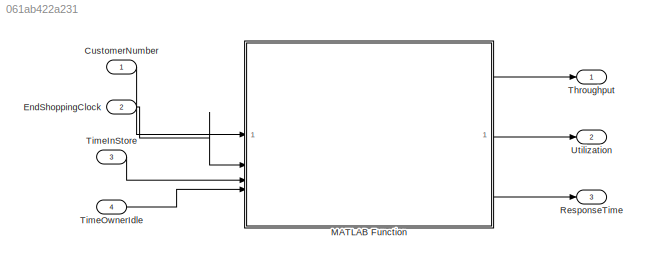
MODEL slx_061ab422a231
KIND model
CONFIG AbsTol = auto
CONFIG EnableMultiTasking = off
CONFIG FixedStep = auto
CONFIG MaxStep = auto
CONFIG MinStep = auto
CONFIG RelTol = 1e-3
CONFIG SampleTimeConstraint = Unconstrained
CONFIG SolverName = VariableStepAuto
CONFIG StartTime = 0.0
CONFIG StopTime = 10.0
BLOCK [Inport] CustomerNumber
BLOCK [Inport] EndShoppingClock
  Port = 2
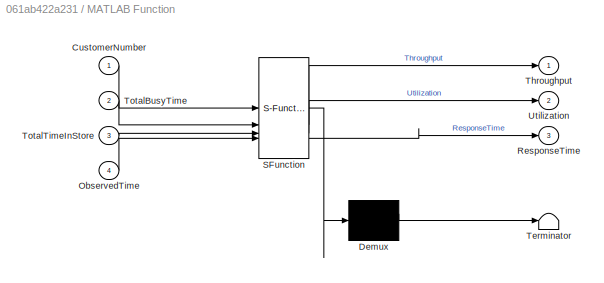
BLOCK [SubSystem] MATLAB Function
  ErrorFcn = Stateflow.Translate.translate
  PermitHierarchicalResolution = ExplicitOnly
  SFBlockType = MATLAB Function
  TreatAsAtomicUnit = on
BLOCK [Demux] MATLAB Function/ Demux 
  Outputs = 1
BLOCK [S-Function] MATLAB Function/ SFunction 
  EnableBusSupport = on
  FunctionName = sf_sfun
  PortCounts = [4 4]
  SFcnIsStateOwnerBlock = off
  SFunctionDeploymentMode = off
  Tag = Stateflow S-Function 2
BLOCK [Terminator] MATLAB Function/ Terminator 
BLOCK [Inport] MATLAB Function/CustomerNumber
BLOCK [Inport] MATLAB Function/ObservedTime
  Port = 4
BLOCK [Outport] MATLAB Function/ResponseTime
  Port = 3
BLOCK [Outport] MATLAB Function/Throughput
BLOCK [Inport] MATLAB Function/TotalBusyTime
  Port = 2
BLOCK [Inport] MATLAB Function/TotalTimeInStore
  Port = 3
BLOCK [Outport] MATLAB Function/Utilization
  Port = 2
BLOCK [Outport] ResponseTime
  Port = 3
BLOCK [Outport] Throughput
BLOCK [Inport] TimeInStore
  Port = 3
BLOCK [Inport] TimeOwnerIdle
  Port = 4
BLOCK [Outport] Utilization
  Port = 2
LINE CustomerNumber:1 -> MATLAB Function:1
LINE EndShoppingClock:1 -> MATLAB Function:2
LINE MATLAB Function:1 -> Throughput:1
LINE MATLAB Function:2 -> Utilization:1
LINE MATLAB Function:3 -> ResponseTime:1
LINE TimeInStore:1 -> MATLAB Function:3
LINE TimeOwnerIdle:1 -> MATLAB Function:4
CHART MATLAB Function states=1 transitions=1
  STATE_LABEL 'eML_blk_kernel()'
  STATE_LABEL 'SCRIPT:\nfunction [Throughput, Utilization, ResponseTime] = Metrics(CustomerNumber, TotalBusyTime, TotalTimeInStore, ObservedTime)\n    if ObservedTime > 0\n        Throughput = CustomerNumber / ObservedTime;\n        \n        Utilization = (TotalBusyTime / ObservedTime) * 100;\n    else\n        Throughput = 0;\n        Utilization = 0;\n    end\n\n    if CustomerNumber > 0\n        ResponseTime = TotalTime...<+73ch>'
CHART  states=0 transitions=0
